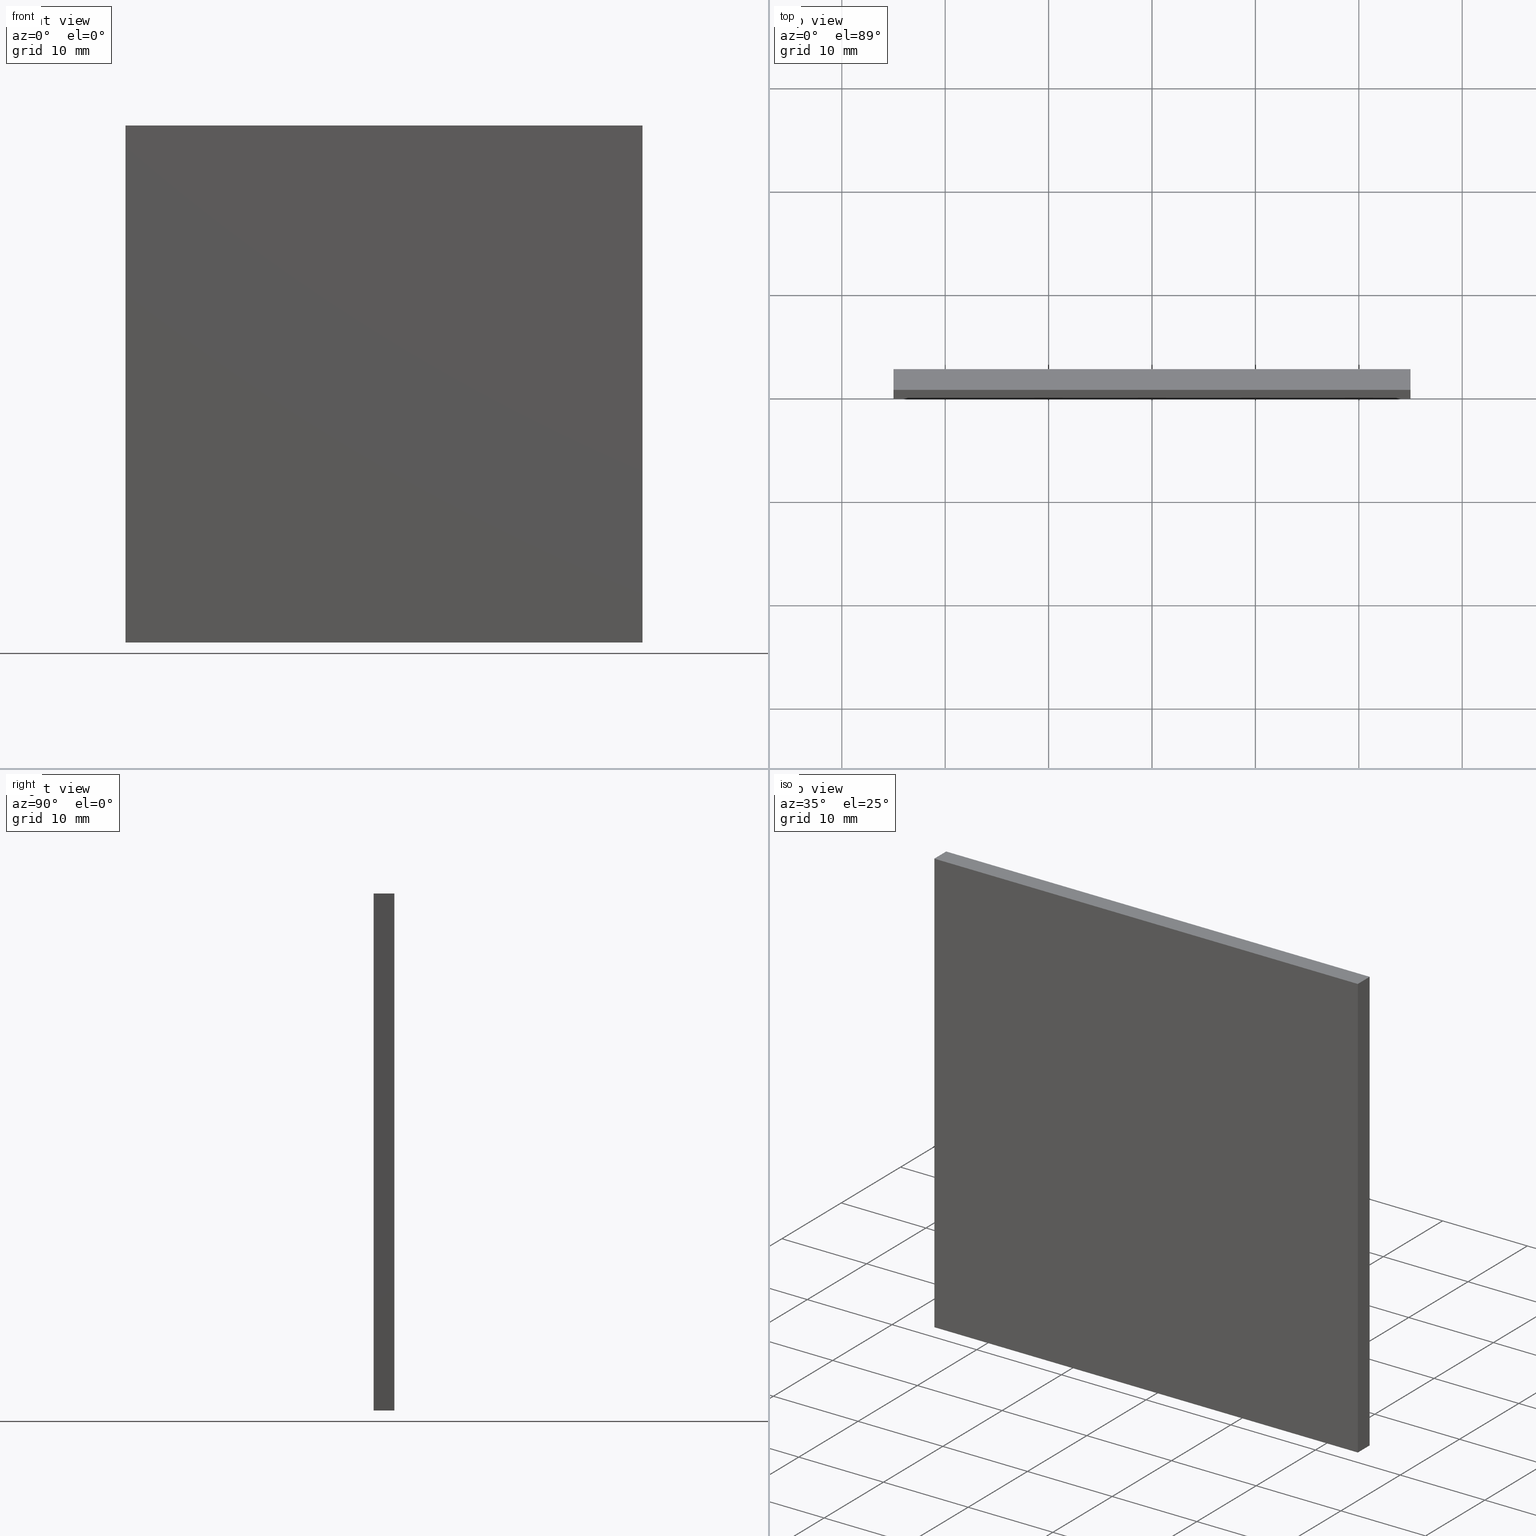
[diagram: canonical four-view strip — front | top / right | iso, engineering-drawing reading convention]
A machine part, canonical four-view strip (front | top / right | iso — engineering-drawing reading convention). The complete STEP part file that produces these views, byte-faithful:
ISO-10303-21;
HEADER;
FILE_DESCRIPTION (( 'STEP AP203' ),
    '1' );
FILE_NAME ('258515.STEP',
    '2019-08-07T02:25:55',
    ( 'user' ),
    ( '΢���й�' ),
    'SwSTEP 2.0',
    'SolidWorks 2016',
    '' );
FILE_SCHEMA (( 'CONFIG_CONTROL_DESIGN' ));
ENDSEC;

DATA;
#1 = FACE_OUTER_BOUND ( 'NONE', #82, .T. ) ;
#2 = VERTEX_POINT ( 'NONE', #77 ) ;
#3 = LINE ( 'NONE', #12, #94 ) ;
#4 = ORIENTED_EDGE ( 'NONE', *, *, #102, .F. ) ;
#5 = CC_DESIGN_PERSON_AND_ORGANIZATION_ASSIGNMENT ( #167, #179, ( #194 ) ) ;
#6 = CC_DESIGN_PERSON_AND_ORGANIZATION_ASSIGNMENT ( #114, #180, ( #161 ) ) ;
#7 = PERSON_AND_ORGANIZATION_ROLE ( 'creator' ) ;
#8 = PLANE ( 'NONE',  #236 ) ;
#9 = DIRECTION ( 'NONE',  ( 0.0000000000000000000, -0.0000000000000000000, 1.000000000000000000 ) ) ;
#10 = DIRECTION ( 'NONE',  ( 1.387778780781445700E-016, 0.0000000000000000000, 1.000000000000000000 ) ) ;
#11 = ORIENTED_EDGE ( 'NONE', *, *, #101, .F. ) ;
#12 = CARTESIAN_POINT ( 'NONE',  ( -25.00000000000000400, 0.0000000000000000000, -25.00000000000000000 ) ) ;
#13 = DIRECTION ( 'NONE',  ( 0.0000000000000000000, 1.000000000000000000, 0.0000000000000000000 ) ) ;
#14 = VECTOR ( 'NONE', #154, 1000.000000000000000 ) ;
#15 = COORDINATED_UNIVERSAL_TIME_OFFSET ( 8, 0, .AHEAD. ) ;
#16 = CARTESIAN_POINT ( 'NONE',  ( 24.99999999999999600, 0.0000000000000000000, -25.00000000000000000 ) ) ;
#17 = DIRECTION ( 'NONE',  ( -0.0000000000000000000, -1.000000000000000000, -0.0000000000000000000 ) ) ;
#18 = DIRECTION ( 'NONE',  ( -1.000000000000000000, 0.0000000000000000000, -0.0000000000000000000 ) ) ;
#19 = ORIENTED_EDGE ( 'NONE', *, *, #32, .T. ) ;
#20 = SECURITY_CLASSIFICATION ( '', '', #49 ) ;
#21 = PRODUCT_DEFINITION ( 'δ֪', '', #194, #52 ) ;
#22 = VECTOR ( 'NONE', #139, 1000.000000000000000 ) ;
#23 = AXIS2_PLACEMENT_3D ( 'NONE', #68, #13, #211 ) ;
#24 = LINE ( 'NONE', #80, #204 ) ;
#25 = ORIENTED_EDGE ( 'NONE', *, *, #138, .T. ) ;
#26 = DIRECTION ( 'NONE',  ( 0.0000000000000000000, 1.000000000000000000, 0.0000000000000000000 ) ) ;
#27 = ORIENTED_EDGE ( 'NONE', *, *, #163, .F. ) ;
#28 = PRODUCT_DEFINITION_SHAPE ( 'NONE', 'NONE',  #21 ) ;
#29 = PERSON_AND_ORGANIZATION ( #203, #140 ) ;
#30 = DIRECTION ( 'NONE',  ( 1.387778780781445700E-016, 0.0000000000000000000, 1.000000000000000000 ) ) ;
#31 = CC_DESIGN_PERSON_AND_ORGANIZATION_ASSIGNMENT ( #29, #137, ( #20 ) ) ;
#32 = EDGE_CURVE ( 'NONE', #64, #92, #72, .T. ) ;
#33 = UNCERTAINTY_MEASURE_WITH_UNIT (LENGTH_MEASURE( 1.000000000000000100E-005 ), #191, 'distance_accuracy_value', 'NONE');
#34 = APPROVAL ( #120, 'δָ��' ) ;
#35 = ORIENTED_EDGE ( 'NONE', *, *, #144, .T. ) ;
#36 = APPROVAL_DATE_TIME ( #131, #59 ) ;
#37 = LOCAL_TIME ( 10, 25, 55.00000000000000000, #83 ) ;
#38 = PLANE ( 'NONE',  #152 ) ;
#39 = ORIENTED_EDGE ( 'NONE', *, *, #170, .F. ) ;
#40 = VECTOR ( 'NONE', #53, 1000.000000000000000 ) ;
#41 = FACE_OUTER_BOUND ( 'NONE', #231, .T. ) ;
#42 = DATE_AND_TIME ( #153, #123 ) ;
#43 = CC_DESIGN_DATE_AND_TIME_ASSIGNMENT ( #132, #110, ( #20 ) ) ;
#44 = EDGE_CURVE ( 'NONE', #126, #166, #50, .T. ) ;
#45 = CC_DESIGN_APPROVAL ( #34, ( #21 ) ) ;
#46 = APPLICATION_CONTEXT ( 'configuration controlled 3d designs of mechanical parts and assemblies' ) ;
#47 = ADVANCED_FACE ( 'NONE', ( #97 ), #186, .T. ) ;
#48 = DIRECTION ( 'NONE',  ( 1.387778780781445700E-016, 0.0000000000000000000, 1.000000000000000000 ) ) ;
#49 = SECURITY_CLASSIFICATION_LEVEL ( 'unclassified' ) ;
#50 = LINE ( 'NONE', #176, #58 ) ;
#51 = ADVANCED_FACE ( 'NONE', ( #133 ), #8, .F. ) ;
#52 = DESIGN_CONTEXT ( 'detailed design', #230, 'design' ) ;
#53 = DIRECTION ( 'NONE',  ( 1.000000000000000000, 0.0000000000000000000, 0.0000000000000000000 ) ) ;
#54 = CARTESIAN_POINT ( 'NONE',  ( 24.99999999999999600, 2.000000000000000000, -25.00000000000000000 ) ) ;
#55 = CALENDAR_DATE ( 2019, 7, 8 ) ;
#56 = EDGE_LOOP ( 'NONE', ( #220, #113, #11, #181 ) ) ;
#57 = CARTESIAN_POINT ( 'NONE',  ( -24.99999999999999600, 2.000000000000000000, 25.00000000000000000 ) ) ;
#58 = VECTOR ( 'NONE', #48, 1000.000000000000000 ) ;
#59 = APPROVAL ( #78, 'δָ��' ) ;
#60 = CC_DESIGN_PERSON_AND_ORGANIZATION_ASSIGNMENT ( #98, #7, ( #21 ) ) ;
#61 = VECTOR ( 'NONE', #69, 1000.000000000000000 ) ;
#62 = PERSON_AND_ORGANIZATION ( #203, #140 ) ;
#63 = ADVANCED_FACE ( 'NONE', ( #1 ), #88, .F. ) ;
#64 = VERTEX_POINT ( 'NONE', #145 ) ;
#65 = VERTEX_POINT ( 'NONE', #149 ) ;
#66 = CARTESIAN_POINT ( 'NONE',  ( -24.99999999999999600, 0.0000000000000000000, 25.00000000000000000 ) ) ;
#67 = VECTOR ( 'NONE', #156, 1000.000000000000000 ) ;
#68 = CARTESIAN_POINT ( 'NONE',  ( 0.0000000000000000000, 0.0000000000000000000, 0.0000000000000000000 ) ) ;
#69 = DIRECTION ( 'NONE',  ( -1.387778780781445700E-016, -0.0000000000000000000, -1.000000000000000000 ) ) ;
#70 = ORIENTED_EDGE ( 'NONE', *, *, #32, .F. ) ;
#71 = DIRECTION ( 'NONE',  ( -1.387778780781445700E-016, 0.0000000000000000000, -1.000000000000000000 ) ) ;
#72 = LINE ( 'NONE', #66, #40 ) ;
#73 = CC_DESIGN_APPROVAL ( #59, ( #20 ) ) ;
#74 = CARTESIAN_POINT ( 'NONE',  ( -25.00000000000000400, 2.000000000000000000, -25.00000000000000000 ) ) ;
#75 = ADVANCED_FACE ( 'NONE', ( #90 ), #193, .F. ) ;
#76 = CC_DESIGN_DATE_AND_TIME_ASSIGNMENT ( #111, #169, ( #21 ) ) ;
#77 = CARTESIAN_POINT ( 'NONE',  ( 24.99999999999999600, 0.0000000000000000000, -25.00000000000000000 ) ) ;
#78 = APPROVAL_STATUS ( 'not_yet_approved' ) ;
#79 = ADVANCED_FACE ( 'NONE', ( #41 ), #38, .F. ) ;
#80 = CARTESIAN_POINT ( 'NONE',  ( -25.00000000000000400, 0.0000000000000000000, -25.00000000000000000 ) ) ;
#81 = LOCAL_TIME ( 10, 25, 55.00000000000000000, #173 ) ;
#82 = EDGE_LOOP ( 'NONE', ( #192, #70, #4, #206 ) ) ;
#83 = COORDINATED_UNIVERSAL_TIME_OFFSET ( 8, 0, .AHEAD. ) ;
#84 = CC_DESIGN_SECURITY_CLASSIFICATION ( #20, ( #194 ) ) ;
#85 = CARTESIAN_POINT ( 'NONE',  ( -24.99999999999999600, 2.000000000000000000, 25.00000000000000000 ) ) ;
#86 = DIRECTION ( 'NONE',  ( 0.0000000000000000000, 0.0000000000000000000, -1.000000000000000000 ) ) ;
#87 = CARTESIAN_POINT ( 'NONE',  ( -25.00000000000000400, 0.0000000000000000000, -25.00000000000000000 ) ) ;
#88 = PLANE ( 'NONE',  #23 ) ;
#89 = DIRECTION ( 'NONE',  ( -0.0000000000000000000, -1.000000000000000000, -0.0000000000000000000 ) ) ;
#90 = FACE_OUTER_BOUND ( 'NONE', #56, .T. ) ;
#91 = APPROVAL_PERSON_ORGANIZATION ( #165, #59, #171 ) ;
#92 = VERTEX_POINT ( 'NONE', #93 ) ;
#93 = CARTESIAN_POINT ( 'NONE',  ( 25.00000000000000400, 0.0000000000000000000, 25.00000000000000000 ) ) ;
#94 = VECTOR ( 'NONE', #30, 1000.000000000000000 ) ;
#95 = DIRECTION ( 'NONE',  ( 1.000000000000000000, 0.0000000000000000000, 0.0000000000000000000 ) ) ;
#96 = DIRECTION ( 'NONE',  ( 1.000000000000000000, 0.0000000000000000000, -1.387778780781445700E-016 ) ) ;
#97 = FACE_OUTER_BOUND ( 'NONE', #202, .T. ) ;
#98 = PERSON_AND_ORGANIZATION ( #203, #140 ) ;
#99 = PRODUCT_RELATED_PRODUCT_CATEGORY ( 'detail', '', ( #161 ) ) ;
#100 = FACE_OUTER_BOUND ( 'NONE', #160, .T. ) ;
#101 = EDGE_CURVE ( 'NONE', #229, #126, #198, .T. ) ;
#102 = EDGE_CURVE ( 'NONE', #174, #64, #3, .T. ) ;
#103 = LOCAL_TIME ( 10, 25, 55.00000000000000000, #117 ) ;
#104 = CARTESIAN_POINT ( 'NONE',  ( 24.99999999999999600, 2.000000000000000000, -25.00000000000000000 ) ) ;
#105 = DIRECTION ( 'NONE',  ( 0.0000000000000000000, 0.0000000000000000000, 1.000000000000000000 ) ) ;
#106 = ORIENTED_EDGE ( 'NONE', *, *, #163, .T. ) ;
#107 = CARTESIAN_POINT ( 'NONE',  ( 24.99999999999999600, 2.000000000000000000, -25.00000000000000000 ) ) ;
#108 = SHAPE_DEFINITION_REPRESENTATION ( #28, #185 ) ;
#109 = VECTOR ( 'NONE', #17, 1000.000000000000000 ) ;
#110 = DATE_TIME_ROLE ( 'classification_date' ) ;
#111 = DATE_AND_TIME ( #55, #103 ) ;
#112 = PLANE ( 'NONE',  #184 ) ;
#113 = ORIENTED_EDGE ( 'NONE', *, *, #118, .F. ) ;
#114 = PERSON_AND_ORGANIZATION ( #203, #140 ) ;
#115 = LINE ( 'NONE', #127, #67 ) ;
#116 = LINE ( 'NONE', #217, #14 ) ;
#117 = COORDINATED_UNIVERSAL_TIME_OFFSET ( 8, 0, .AHEAD. ) ;
#118 = EDGE_CURVE ( 'NONE', #126, #174, #116, .T. ) ;
#119 = ORIENTED_EDGE ( 'NONE', *, *, #138, .F. ) ;
#120 = APPROVAL_STATUS ( 'not_yet_approved' ) ;
#121 = ORIENTED_EDGE ( 'NONE', *, *, #144, .F. ) ;
#122 = CLOSED_SHELL ( 'NONE', ( #51, #75, #189, #79, #47, #63 ) ) ;
#123 = LOCAL_TIME ( 10, 25, 55.00000000000000000, #15 ) ;
#124 = CARTESIAN_POINT ( 'NONE',  ( 0.0000000000000000000, 2.000000000000000000, 0.0000000000000000000 ) ) ;
#125 = EDGE_CURVE ( 'NONE', #92, #2, #159, .T. ) ;
#126 = VERTEX_POINT ( 'NONE', #74 ) ;
#127 = CARTESIAN_POINT ( 'NONE',  ( -24.99999999999999600, 2.000000000000000000, 25.00000000000000000 ) ) ;
#128 = CALENDAR_DATE ( 2019, 7, 8 ) ;
#129 = EDGE_LOOP ( 'NONE', ( #135, #222, #39, #35 ) ) ;
#130 = ORIENTED_EDGE ( 'NONE', *, *, #102, .T. ) ;
#131 = DATE_AND_TIME ( #226, #81 ) ;
#132 = DATE_AND_TIME ( #128, #37 ) ;
#133 = FACE_OUTER_BOUND ( 'NONE', #129, .T. ) ;
#134 = AXIS2_PLACEMENT_3D ( 'NONE', #216, #168, #148 ) ;
#135 = ORIENTED_EDGE ( 'NONE', *, *, #125, .T. ) ;
#136 = EDGE_CURVE ( 'NONE', #2, #174, #24, .T. ) ;
#137 = PERSON_AND_ORGANIZATION_ROLE ( 'classification_officer' ) ;
#138 = EDGE_CURVE ( 'NONE', #166, #65, #115, .T. ) ;
#139 = DIRECTION ( 'NONE',  ( -1.000000000000000000, -0.0000000000000000000, -0.0000000000000000000 ) ) ;
#140 = ORGANIZATION ( 'δָ��', 'δָ��', '' ) ;
#141 = LINE ( 'NONE', #107, #187 ) ;
#142 = LINE ( 'NONE', #104, #197 ) ;
#143 = PERSON_AND_ORGANIZATION ( #203, #140 ) ;
#144 = EDGE_CURVE ( 'NONE', #65, #92, #158, .T. ) ;
#145 = CARTESIAN_POINT ( 'NONE',  ( -24.99999999999999600, 0.0000000000000000000, 25.00000000000000000 ) ) ;
#146 = APPROVAL_DATE_TIME ( #42, #34 ) ;
#147 = APPROVAL_ROLE ( '' ) ;
#148 = DIRECTION ( 'NONE',  ( 1.000000000000000000, 0.0000000000000000000, -0.0000000000000000000 ) ) ;
#149 = CARTESIAN_POINT ( 'NONE',  ( 25.00000000000000400, 2.000000000000000000, 25.00000000000000000 ) ) ;
#150 = CARTESIAN_POINT ( 'NONE',  ( 24.99999999999999600, 2.000000000000000000, -25.00000000000000000 ) ) ;
#151 = APPROVAL_PERSON_ORGANIZATION ( #208, #34, #147 ) ;
#152 = AXIS2_PLACEMENT_3D ( 'NONE', #57, #86, #18 ) ;
#153 = CALENDAR_DATE ( 2019, 7, 8 ) ;
#154 = DIRECTION ( 'NONE',  ( -0.0000000000000000000, -1.000000000000000000, -0.0000000000000000000 ) ) ;
#155 = EDGE_CURVE ( 'NONE', #229, #2, #142, .T. ) ;
#156 = DIRECTION ( 'NONE',  ( 1.000000000000000000, 0.0000000000000000000, 0.0000000000000000000 ) ) ;
#157 = PERSON_AND_ORGANIZATION_ROLE ( 'creator' ) ;
#158 = LINE ( 'NONE', #201, #209 ) ;
#159 = LINE ( 'NONE', #16, #61 ) ;
#160 = EDGE_LOOP ( 'NONE', ( #130, #27, #224, #227 ) ) ;
#161 = PRODUCT ( '258515', '258515', '', ( #221 ) ) ;
#162 = ORIENTED_EDGE ( 'NONE', *, *, #44, .T. ) ;
#163 = EDGE_CURVE ( 'NONE', #166, #64, #196, .T. ) ;
#164 =( GEOMETRIC_REPRESENTATION_CONTEXT ( 3 ) GLOBAL_UNCERTAINTY_ASSIGNED_CONTEXT ( ( #33 ) ) GLOBAL_UNIT_ASSIGNED_CONTEXT ( ( #191, #195, #190 ) ) REPRESENTATION_CONTEXT ( 'NONE', 'WORKASPACE' ) );
#165 = PERSON_AND_ORGANIZATION ( #203, #140 ) ;
#166 = VERTEX_POINT ( 'NONE', #85 ) ;
#167 = PERSON_AND_ORGANIZATION ( #203, #140 ) ;
#168 = DIRECTION ( 'NONE',  ( 0.0000000000000000000, 0.0000000000000000000, 1.000000000000000000 ) ) ;
#169 = DATE_TIME_ROLE ( 'creation_date' ) ;
#170 = EDGE_CURVE ( 'NONE', #65, #229, #141, .T. ) ;
#171 = APPROVAL_ROLE ( '' ) ;
#172 = ORIENTED_EDGE ( 'NONE', *, *, #101, .T. ) ;
#173 = COORDINATED_UNIVERSAL_TIME_OFFSET ( 8, 0, .AHEAD. ) ;
#174 = VERTEX_POINT ( 'NONE', #87 ) ;
#175 = APPROVAL_PERSON_ORGANIZATION ( #62, #207, #213 ) ;
#176 = CARTESIAN_POINT ( 'NONE',  ( -25.00000000000000400, 2.000000000000000000, -25.00000000000000000 ) ) ;
#177 = ORIENTED_EDGE ( 'NONE', *, *, #170, .T. ) ;
#178 = CARTESIAN_POINT ( 'NONE',  ( -25.00000000000000400, 2.000000000000000000, -25.00000000000000000 ) ) ;
#179 = PERSON_AND_ORGANIZATION_ROLE ( 'design_supplier' ) ;
#180 = PERSON_AND_ORGANIZATION_ROLE ( 'design_owner' ) ;
#181 = ORIENTED_EDGE ( 'NONE', *, *, #155, .T. ) ;
#182 = MANIFOLD_SOLID_BREP ( '͹̨-����1', #122 ) ;
#183 = DATE_AND_TIME ( #225, #233 ) ;
#184 = AXIS2_PLACEMENT_3D ( 'NONE', #178, #96, #71 ) ;
#185 = ADVANCED_BREP_SHAPE_REPRESENTATION ( '258515', ( #182, #234 ), #164 ) ;
#186 = PLANE ( 'NONE',  #212 ) ;
#187 = VECTOR ( 'NONE', #188, 1000.000000000000000 ) ;
#188 = DIRECTION ( 'NONE',  ( -1.387778780781445700E-016, -0.0000000000000000000, -1.000000000000000000 ) ) ;
#189 = ADVANCED_FACE ( 'NONE', ( #100 ), #112, .F. ) ;
#190 =( NAMED_UNIT ( * ) SI_UNIT ( $, .STERADIAN. ) SOLID_ANGLE_UNIT ( ) );
#191 =( LENGTH_UNIT ( ) NAMED_UNIT ( * ) SI_UNIT ( .MILLI., .METRE. ) );
#192 = ORIENTED_EDGE ( 'NONE', *, *, #125, .F. ) ;
#193 = PLANE ( 'NONE',  #134 ) ;
#194 = PRODUCT_DEFINITION_FORMATION_WITH_SPECIFIED_SOURCE ( '�κ�', '', #161, .NOT_KNOWN. ) ;
#195 =( NAMED_UNIT ( * ) PLANE_ANGLE_UNIT ( ) SI_UNIT ( $, .RADIAN. ) );
#196 = LINE ( 'NONE', #199, #109 ) ;
#197 = VECTOR ( 'NONE', #89, 1000.000000000000000 ) ;
#198 = LINE ( 'NONE', #210, #22 ) ;
#199 = CARTESIAN_POINT ( 'NONE',  ( -24.99999999999999600, 2.000000000000000000, 25.00000000000000000 ) ) ;
#200 = DIRECTION ( 'NONE',  ( -1.000000000000000000, -0.0000000000000000000, -0.0000000000000000000 ) ) ;
#201 = CARTESIAN_POINT ( 'NONE',  ( 25.00000000000000400, 2.000000000000000000, 25.00000000000000000 ) ) ;
#202 = EDGE_LOOP ( 'NONE', ( #177, #172, #162, #25 ) ) ;
#203 = PERSON ( 'δָ��', 'δָ��', 'δָ��', ('δָ��'), ('δָ��'), ('δָ��') ) ;
#204 = VECTOR ( 'NONE', #200, 1000.000000000000000 ) ;
#205 = COORDINATED_UNIVERSAL_TIME_OFFSET ( 8, 0, .AHEAD. ) ;
#206 = ORIENTED_EDGE ( 'NONE', *, *, #136, .F. ) ;
#207 = APPROVAL ( #235, 'δָ��' ) ;
#208 = PERSON_AND_ORGANIZATION ( #203, #140 ) ;
#209 = VECTOR ( 'NONE', #219, 1000.000000000000000 ) ;
#210 = CARTESIAN_POINT ( 'NONE',  ( -25.00000000000000400, 2.000000000000000000, -25.00000000000000000 ) ) ;
#211 = DIRECTION ( 'NONE',  ( 0.0000000000000000000, -0.0000000000000000000, 1.000000000000000000 ) ) ;
#212 = AXIS2_PLACEMENT_3D ( 'NONE', #124, #26, #9 ) ;
#213 = APPROVAL_ROLE ( '' ) ;
#214 = APPLICATION_PROTOCOL_DEFINITION ( 'international standard', 'config_control_design', 1994, #46 ) ;
#215 = APPLICATION_PROTOCOL_DEFINITION ( 'international standard', 'config_control_design', 1994, #230 ) ;
#216 = CARTESIAN_POINT ( 'NONE',  ( -25.00000000000000400, 2.000000000000000000, -25.00000000000000000 ) ) ;
#217 = CARTESIAN_POINT ( 'NONE',  ( -25.00000000000000400, 2.000000000000000000, -25.00000000000000000 ) ) ;
#218 = APPROVAL_DATE_TIME ( #183, #207 ) ;
#219 = DIRECTION ( 'NONE',  ( -0.0000000000000000000, -1.000000000000000000, -0.0000000000000000000 ) ) ;
#220 = ORIENTED_EDGE ( 'NONE', *, *, #136, .T. ) ;
#221 = MECHANICAL_CONTEXT ( 'NONE', #46, 'mechanical' ) ;
#222 = ORIENTED_EDGE ( 'NONE', *, *, #155, .F. ) ;
#223 = CC_DESIGN_APPROVAL ( #207, ( #194 ) ) ;
#224 = ORIENTED_EDGE ( 'NONE', *, *, #44, .F. ) ;
#225 = CALENDAR_DATE ( 2019, 7, 8 ) ;
#226 = CALENDAR_DATE ( 2019, 7, 8 ) ;
#227 = ORIENTED_EDGE ( 'NONE', *, *, #118, .T. ) ;
#228 = DIRECTION ( 'NONE',  ( -1.000000000000000000, 0.0000000000000000000, 1.387778780781445700E-016 ) ) ;
#229 = VERTEX_POINT ( 'NONE', #54 ) ;
#230 = APPLICATION_CONTEXT ( 'configuration controlled 3d designs of mechanical parts and assemblies' ) ;
#231 = EDGE_LOOP ( 'NONE', ( #19, #121, #119, #106 ) ) ;
#232 = CC_DESIGN_PERSON_AND_ORGANIZATION_ASSIGNMENT ( #143, #157, ( #194 ) ) ;
#233 = LOCAL_TIME ( 10, 25, 55.00000000000000000, #205 ) ;
#234 = AXIS2_PLACEMENT_3D ( 'NONE', #237, #105, #95 ) ;
#235 = APPROVAL_STATUS ( 'not_yet_approved' ) ;
#236 = AXIS2_PLACEMENT_3D ( 'NONE', #150, #228, #10 ) ;
#237 = CARTESIAN_POINT ( 'NONE',  ( 0.0000000000000000000, 0.0000000000000000000, 0.0000000000000000000 ) ) ;
ENDSEC;
END-ISO-10303-21;
